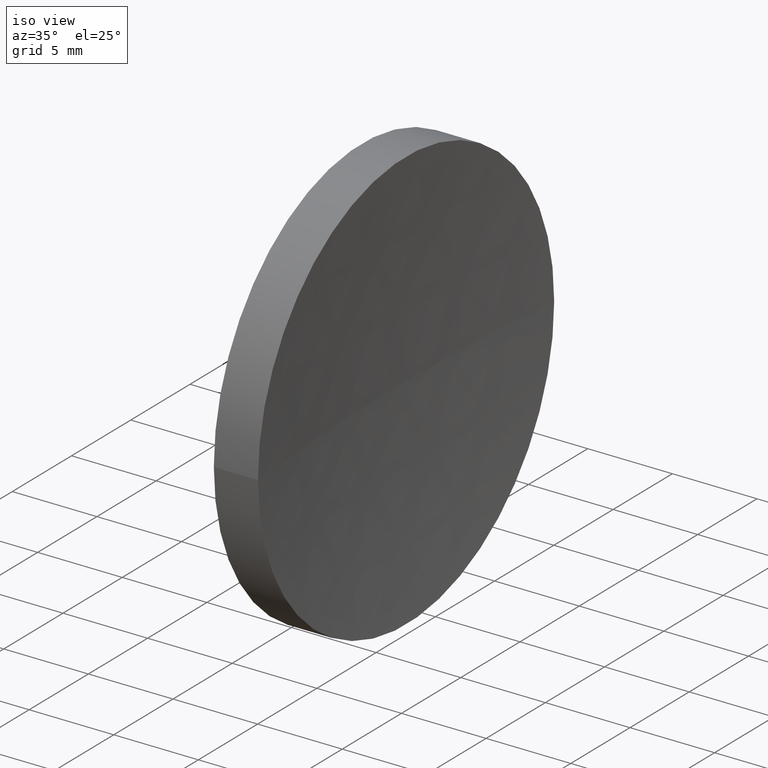
[diagram: clean part render]
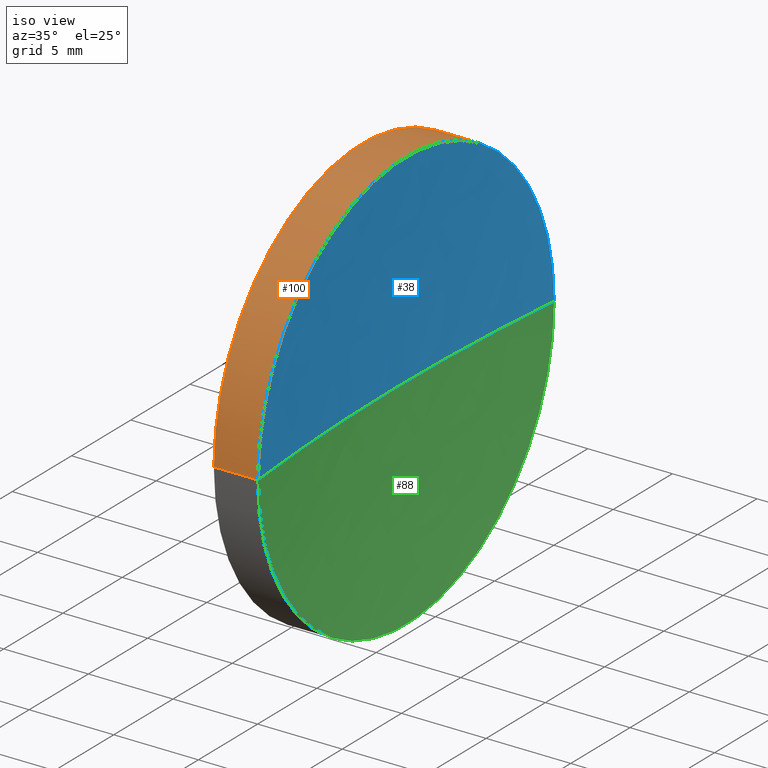
[diagram: same view with three faces highlighted in distinct colors, each labeled with its STEP entity id]
A machine part, iso view with three faces highlighted in distinct colors.
Their STEP definitions:

[orange] entity #100 — the highlighted cylindrical surface (partial cylindrical patch) has radius 12.5 mm, axis along (-1, 0, -0).
#10 = VERTEX_POINT ( 'NONE', #50 ) ;
#14 = EDGE_CURVE ( 'NONE', #10, #23, #54, .T. ) ;
#18 = CARTESIAN_POINT ( 'NONE',  ( 57.35819015802111700, 45.07872591329309100, 1.530808498934191900E-015 ) ) ;
#23 = VERTEX_POINT ( 'NONE', #33 ) ;
#28 = EDGE_CURVE ( 'NONE', #23, #41, #80, .T. ) ;
#32 = CARTESIAN_POINT ( 'NONE',  ( 57.35819015802111000, 32.57872591329309800, 0.0000000000000000000 ) ) ;
#33 = CARTESIAN_POINT ( 'NONE',  ( 57.35819015802110200, 20.07872591329309800, 0.0000000000000000000 ) ) ;
#34 = DIRECTION ( 'NONE',  ( -5.551115123125782700E-016, -1.000000000000000000, 0.0000000000000000000 ) ) ;
#35 = ORIENTED_EDGE ( 'NONE', *, *, #42, .T. ) ;
#40 = ORIENTED_EDGE ( 'NONE', *, *, #14, .F. ) ;
#41 = VERTEX_POINT ( 'NONE', #18 ) ;
#42 = EDGE_CURVE ( 'NONE', #10, #149, #101, .T. ) ;
#50 = CARTESIAN_POINT ( 'NONE',  ( 59.96462464522185300, 20.07872685537733700, 0.0000000000000000000 ) ) ;
#52 = CARTESIAN_POINT ( 'NONE',  ( 55.00739462442118100, 32.57872591329309800, 0.0000000000000000000 ) ) ;
#53 = DIRECTION ( 'NONE',  ( -1.000000000000000000, 7.636108817321419600E-016, -0.0000000000000000000 ) ) ;
#54 = LINE ( 'NONE', #98, #106 ) ;
#55 = EDGE_CURVE ( 'NONE', #149, #41, #83, .T. ) ;
#59 = CARTESIAN_POINT ( 'NONE',  ( 59.96462464522185300, 45.07872591329312000, 1.530808383562146000E-015 ) ) ;
#67 = DIRECTION ( 'NONE',  ( -1.000000000000000000, 7.636108817321419600E-016, -0.0000000000000000000 ) ) ;
#69 = DIRECTION ( 'NONE',  ( -1.000000000000000000, 7.636108817321419600E-016, -0.0000000000000000000 ) ) ;
#70 = ORIENTED_EDGE ( 'NONE', *, *, #28, .F. ) ;
#74 = AXIS2_PLACEMENT_3D ( 'NONE', #163, #69, #140 ) ;
#78 = AXIS2_PLACEMENT_3D ( 'NONE', #52, #164, #34 ) ;
#80 = CIRCLE ( 'NONE', #151, 12.49999999999999600 ) ;
#83 = LINE ( 'NONE', #150, #112 ) ;
#86 = EDGE_LOOP ( 'NONE', ( #35, #120, #70, #40 ) ) ;
#96 = DIRECTION ( 'NONE',  ( -5.551115123125784700E-016, -1.000000000000000000, 0.0000000000000000000 ) ) ;
#98 = CARTESIAN_POINT ( 'NONE',  ( 55.00739462442117400, 20.07872591329309500, 0.0000000000000000000 ) ) ;
#100 = ADVANCED_FACE ( 'NONE', ( #132 ), #111, .T. ) ;
#101 = CIRCLE ( 'NONE', #74, 12.50000000000000000 ) ;
#106 = VECTOR ( 'NONE', #119, 1000.000000000000000 ) ;
#111 = CYLINDRICAL_SURFACE ( 'NONE', #78, 12.50000000000000000 ) ;
#112 = VECTOR ( 'NONE', #53, 1000.000000000000000 ) ;
#119 = DIRECTION ( 'NONE',  ( -1.000000000000000000, 7.636108817321419600E-016, -0.0000000000000000000 ) ) ;
#120 = ORIENTED_EDGE ( 'NONE', *, *, #55, .T. ) ;
#132 = FACE_OUTER_BOUND ( 'NONE', #86, .T. ) ;
#140 = DIRECTION ( 'NONE',  ( -5.551115123125782700E-016, -1.000000000000000000, 0.0000000000000000000 ) ) ;
#149 = VERTEX_POINT ( 'NONE', #59 ) ;
#150 = CARTESIAN_POINT ( 'NONE',  ( 55.00739462442118800, 45.07872591329309100, 1.530808498934191500E-015 ) ) ;
#151 = AXIS2_PLACEMENT_3D ( 'NONE', #32, #67, #96 ) ;
#163 = CARTESIAN_POINT ( 'NONE',  ( 59.96462464522186800, 32.57872591329309100, 0.0000000000000000000 ) ) ;
#164 = DIRECTION ( 'NONE',  ( -1.000000000000000000, 7.636108817321419600E-016, -0.0000000000000000000 ) ) ;

[blue] entity #38 — the highlighted spherical surface has radius 129.13 mm.
#1 = ORIENTED_EDGE ( 'NONE', *, *, #129, .T. ) ;
#3 = CIRCLE ( 'NONE', #102, 129.1300000000000200 ) ;
#10 = VERTEX_POINT ( 'NONE', #50 ) ;
#19 = CARTESIAN_POINT ( 'NONE',  ( 188.4881902802917500, 32.57872685537726200, 0.0000000000000000000 ) ) ;
#24 = SPHERICAL_SURFACE ( 'NONE', #93, 129.1300000000000200 ) ;
#38 = ADVANCED_FACE ( 'NONE', ( #60 ), #24, .F. ) ;
#42 = EDGE_CURVE ( 'NONE', #10, #149, #101, .T. ) ;
#47 = ORIENTED_EDGE ( 'NONE', *, *, #114, .F. ) ;
#48 = DIRECTION ( 'NONE',  ( -8.597715671224009600E-016, -1.000000000000000000, 0.0000000000000000000 ) ) ;
#50 = CARTESIAN_POINT ( 'NONE',  ( 59.96462464522185300, 20.07872685537733700, 0.0000000000000000000 ) ) ;
#59 = CARTESIAN_POINT ( 'NONE',  ( 59.96462464522185300, 45.07872591329312000, 1.530808383562146000E-015 ) ) ;
#60 = FACE_OUTER_BOUND ( 'NONE', #87, .T. ) ;
#68 = CIRCLE ( 'NONE', #84, 129.1300000000000200 ) ;
#69 = DIRECTION ( 'NONE',  ( -1.000000000000000000, 7.636108817321419600E-016, -0.0000000000000000000 ) ) ;
#74 = AXIS2_PLACEMENT_3D ( 'NONE', #163, #69, #140 ) ;
#76 = CARTESIAN_POINT ( 'NONE',  ( 188.4881902802917500, 32.57872685537726200, 0.0000000000000000000 ) ) ;
#84 = AXIS2_PLACEMENT_3D ( 'NONE', #76, #157, #146 ) ;
#87 = EDGE_LOOP ( 'NONE', ( #47, #162, #1 ) ) ;
#93 = AXIS2_PLACEMENT_3D ( 'NONE', #19, #109, #48 ) ;
#94 = CARTESIAN_POINT ( 'NONE',  ( 188.4881902802917500, 32.57872685537726200, 0.0000000000000000000 ) ) ;
#101 = CIRCLE ( 'NONE', #74, 12.50000000000000000 ) ;
#102 = AXIS2_PLACEMENT_3D ( 'NONE', #94, #138, #115 ) ;
#109 = DIRECTION ( 'NONE',  ( 0.0000000000000000000, 0.0000000000000000000, 1.000000000000000000 ) ) ;
#114 = EDGE_CURVE ( 'NONE', #149, #123, #68, .T. ) ;
#115 = DIRECTION ( 'NONE',  ( -1.000000000000000000, 0.0000000000000000000, 0.0000000000000000000 ) ) ;
#118 = CARTESIAN_POINT ( 'NONE',  ( 59.35819028029170900, 32.57872685537735400, 0.0000000000000000000 ) ) ;
#123 = VERTEX_POINT ( 'NONE', #118 ) ;
#129 = EDGE_CURVE ( 'NONE', #10, #123, #3, .T. ) ;
#138 = DIRECTION ( 'NONE',  ( 0.0000000000000000000, -0.0000000000000000000, -1.000000000000000000 ) ) ;
#140 = DIRECTION ( 'NONE',  ( -5.551115123125782700E-016, -1.000000000000000000, 0.0000000000000000000 ) ) ;
#146 = DIRECTION ( 'NONE',  ( 0.0000000000000000000, -1.000000000000000000, -1.224646799147353200E-016 ) ) ;
#149 = VERTEX_POINT ( 'NONE', #59 ) ;
#157 = DIRECTION ( 'NONE',  ( -9.351536221073556900E-032, -1.224646799147353200E-016, 1.000000000000000000 ) ) ;
#162 = ORIENTED_EDGE ( 'NONE', *, *, #42, .F. ) ;
#163 = CARTESIAN_POINT ( 'NONE',  ( 59.96462464522186800, 32.57872591329309100, 0.0000000000000000000 ) ) ;

[green] entity #88 — the highlighted spherical surface has radius 129.13 mm.
#3 = CIRCLE ( 'NONE', #102, 129.1300000000000200 ) ;
#7 = DIRECTION ( 'NONE',  ( -5.551115123125782700E-016, -1.000000000000000000, 0.0000000000000000000 ) ) ;
#10 = VERTEX_POINT ( 'NONE', #50 ) ;
#26 = EDGE_LOOP ( 'NONE', ( #46, #161, #142 ) ) ;
#37 = EDGE_CURVE ( 'NONE', #149, #10, #95, .T. ) ;
#46 = ORIENTED_EDGE ( 'NONE', *, *, #37, .F. ) ;
#49 = AXIS2_PLACEMENT_3D ( 'NONE', #79, #51, #7 ) ;
#50 = CARTESIAN_POINT ( 'NONE',  ( 59.96462464522185300, 20.07872685537733700, 0.0000000000000000000 ) ) ;
#51 = DIRECTION ( 'NONE',  ( -1.000000000000000000, 7.636108817321419600E-016, -0.0000000000000000000 ) ) ;
#59 = CARTESIAN_POINT ( 'NONE',  ( 59.96462464522185300, 45.07872591329312000, 1.530808383562146000E-015 ) ) ;
#68 = CIRCLE ( 'NONE', #84, 129.1300000000000200 ) ;
#75 = FACE_OUTER_BOUND ( 'NONE', #26, .T. ) ;
#76 = CARTESIAN_POINT ( 'NONE',  ( 188.4881902802917500, 32.57872685537726200, 0.0000000000000000000 ) ) ;
#79 = CARTESIAN_POINT ( 'NONE',  ( 59.96462464522186800, 32.57872591329309100, 0.0000000000000000000 ) ) ;
#81 = CARTESIAN_POINT ( 'NONE',  ( 188.4881902802917500, 32.57872685537726200, 0.0000000000000000000 ) ) ;
#84 = AXIS2_PLACEMENT_3D ( 'NONE', #76, #157, #146 ) ;
#88 = ADVANCED_FACE ( 'NONE', ( #75 ), #165, .F. ) ;
#94 = CARTESIAN_POINT ( 'NONE',  ( 188.4881902802917500, 32.57872685537726200, 0.0000000000000000000 ) ) ;
#95 = CIRCLE ( 'NONE', #49, 12.50000000000000000 ) ;
#102 = AXIS2_PLACEMENT_3D ( 'NONE', #94, #138, #115 ) ;
#108 = AXIS2_PLACEMENT_3D ( 'NONE', #81, #131, #152 ) ;
#114 = EDGE_CURVE ( 'NONE', #149, #123, #68, .T. ) ;
#115 = DIRECTION ( 'NONE',  ( -1.000000000000000000, 0.0000000000000000000, 0.0000000000000000000 ) ) ;
#118 = CARTESIAN_POINT ( 'NONE',  ( 59.35819028029170900, 32.57872685537735400, 0.0000000000000000000 ) ) ;
#123 = VERTEX_POINT ( 'NONE', #118 ) ;
#129 = EDGE_CURVE ( 'NONE', #10, #123, #3, .T. ) ;
#131 = DIRECTION ( 'NONE',  ( 0.0000000000000000000, 0.0000000000000000000, 1.000000000000000000 ) ) ;
#138 = DIRECTION ( 'NONE',  ( 0.0000000000000000000, -0.0000000000000000000, -1.000000000000000000 ) ) ;
#142 = ORIENTED_EDGE ( 'NONE', *, *, #129, .F. ) ;
#146 = DIRECTION ( 'NONE',  ( 0.0000000000000000000, -1.000000000000000000, -1.224646799147353200E-016 ) ) ;
#149 = VERTEX_POINT ( 'NONE', #59 ) ;
#152 = DIRECTION ( 'NONE',  ( -8.597715671224009600E-016, -1.000000000000000000, 0.0000000000000000000 ) ) ;
#157 = DIRECTION ( 'NONE',  ( -9.351536221073556900E-032, -1.224646799147353200E-016, 1.000000000000000000 ) ) ;
#161 = ORIENTED_EDGE ( 'NONE', *, *, #114, .T. ) ;
#165 = SPHERICAL_SURFACE ( 'NONE', #108, 129.1300000000000200 ) ;